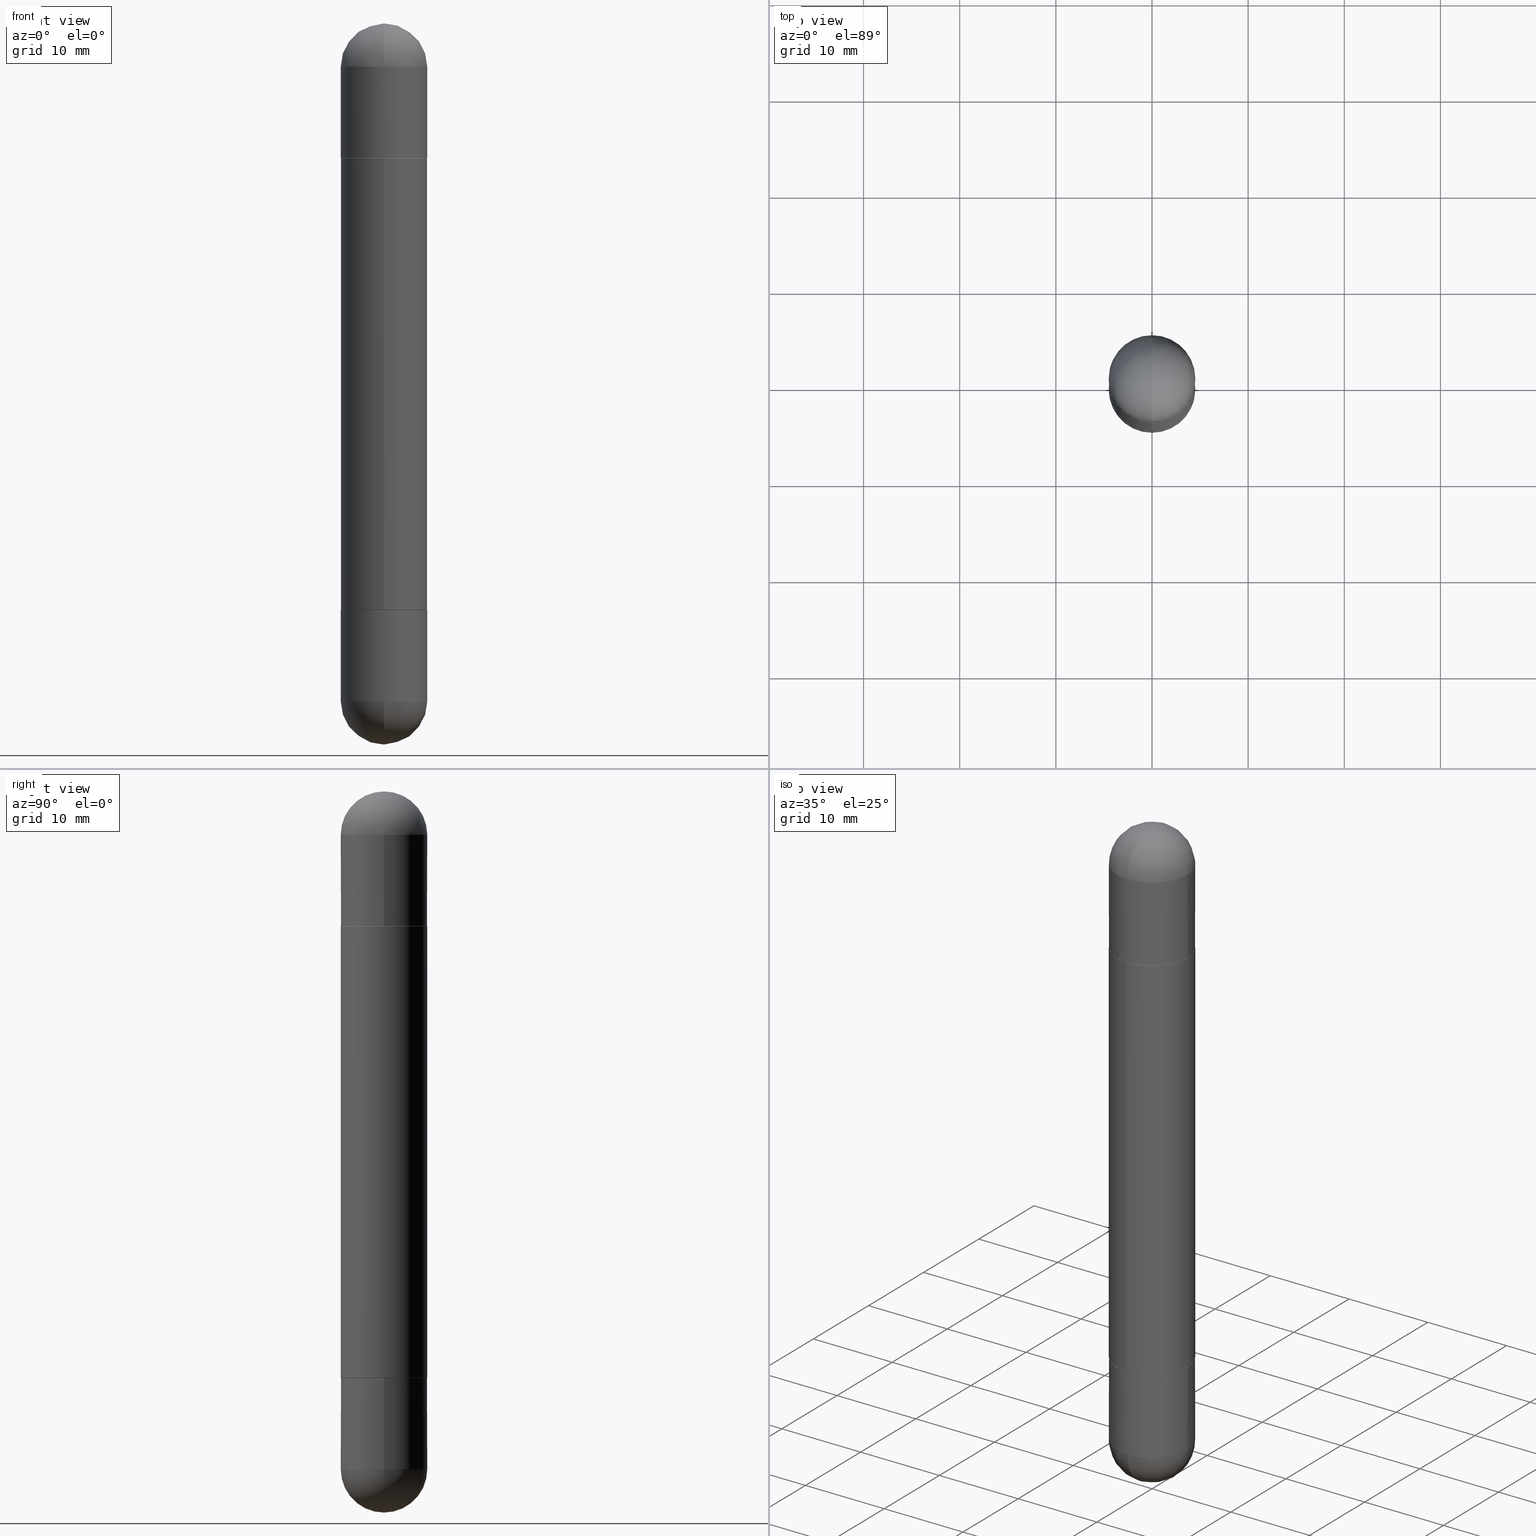
[diagram: canonical four-view strip — front | top / right | iso, engineering-drawing reading convention]
A machine part, canonical four-view strip (front | top / right | iso — engineering-drawing reading convention). The complete STEP part file that produces these views, byte-faithful:
ISO-10303-21;
HEADER;
FILE_DESCRIPTION (( 'STEP AP203' ),
    '1' );
FILE_NAME ('41454.STEP',
    '2024-03-01T12:45:10',
    ( '' ),
    ( '' ),
    'SwSTEP 2.0',
    'SolidWorks 2023',
    '' );
FILE_SCHEMA (( 'CONFIG_CONTROL_DESIGN' ));
ENDSEC;

DATA;
#1 = EDGE_CURVE ( 'NONE', #235, #277, #738, .T. ) ;
#2 = ORIENTED_EDGE ( 'NONE', *, *, #306, .T. ) ;
#3 = APPROVAL_ROLE ( '' ) ;
#4 = CARTESIAN_POINT ( 'NONE',  ( 1.251621029041475058E-15, 0.1761499999999916188, -2.401600000000000623 ) ) ;
#5 = CARTESIAN_POINT ( 'NONE',  ( 1.208476722307514059E-15, 0.1761499999999916188, -0.5511999999999992461 ) ) ;
#6 = VERTEX_POINT ( 'NONE', #110 ) ;
#7 = CARTESIAN_POINT ( 'NONE',  ( 1.211906971306400752E-15, 0.1761499999999916188, -0.5511999999999992461 ) ) ;
#8 = AXIS2_PLACEMENT_3D ( 'NONE', #677, #547, #250 ) ;
#9 = DIRECTION ( 'NONE',  ( 1.000000000000000000, -6.982962677686266711E-15, 0.000000000000000000 ) ) ;
#10 = EDGE_CURVE ( 'NONE', #24, #715, #681, .T. ) ;
#11 = AXIS2_PLACEMENT_3D ( 'NONE', #541, #228, #662 ) ;
#12 = AXIS2_PLACEMENT_3D ( 'NONE', #132, #624, #635 ) ;
#13 = ORIENTED_EDGE ( 'NONE', *, *, #495, .T. ) ;
#14 = DIRECTION ( 'NONE',  ( 1.000000000000000000, -6.982962677686272233E-15, 0.000000000000000000 ) ) ;
#15 = DIRECTION ( 'NONE',  ( -6.982962677686265133E-15, -1.000000000000000000, -3.084220145260243069E-15 ) ) ;
#16 = ORIENTED_EDGE ( 'NONE', *, *, #633, .T. ) ;
#17 = DIRECTION ( 'NONE',  ( -2.445468806185136597E-29, 3.491481338843145583E-15, 1.000000000000000000 ) ) ;
#18 = CARTESIAN_POINT ( 'NONE',  ( 1.237031838352180770E-15, 0.1771499999999916197, -0.5511999999999995792 ) ) ;
#19 = ORIENTED_EDGE ( 'NONE', *, *, #537, .F. ) ;
#20 = DIRECTION ( 'NONE',  ( -6.982962677686265133E-15, -1.000000000000000000, -3.469747663417770691E-15 ) ) ;
#21 = DIRECTION ( 'NONE',  ( -2.444945301580279245E-29, 3.492231027233333225E-15, -1.000000000000000000 ) ) ;
#22 = CONICAL_SURFACE ( 'NONE', #589, 0.1761500000000000010, 0.7853981633974311816 ) ;
#23 = AXIS2_PLACEMENT_3D ( 'NONE', #534, #147, #593 ) ;
#24 = VERTEX_POINT ( 'NONE', #58 ) ;
#25 = AXIS2_PLACEMENT_3D ( 'NONE', #319, #83, #14 ) ;
#26 = CARTESIAN_POINT ( 'NONE',  ( -0.1771500000000000019, 1.258726456399017493E-15, -8.713893512386565325E-30 ) ) ;
#27 = ADVANCED_FACE ( 'NONE', ( #747 ), #22, .T. ) ;
#28 = CARTESIAN_POINT ( 'NONE',  ( 6.787765491887772680E-29, -9.691130178159974964E-15, -0.1771500000000000574 ) ) ;
#29 = APPROVAL_PERSON_ORGANIZATION ( #236, #707, #440 ) ;
#30 = EDGE_CURVE ( 'NONE', #384, #636, #299, .T. ) ;
#31 = EDGE_LOOP ( 'NONE', ( #261, #770 ) ) ;
#32 = CARTESIAN_POINT ( 'NONE',  ( 1.237031838352189250E-15, 0.1771499999999902042, -0.1771499999999994468 ) ) ;
#33 = ADVANCED_FACE ( 'NONE', ( #355 ), #175, .T. ) ;
#34 = CARTESIAN_POINT ( 'NONE',  ( 0.000000000000000000, 0.000000000000000000, -2.952799999999999869 ) ) ;
#35 = ORIENTED_EDGE ( 'NONE', *, *, #439, .T. ) ;
#36 =( LENGTH_UNIT ( ) NAMED_UNIT ( * ) SI_UNIT ( $, .METRE. ) );
#37 = CARTESIAN_POINT ( 'NONE',  ( -0.1771500000000000019, 1.215337220305226901E-15, -2.952799999999999869 ) ) ;
#38 = CC_DESIGN_DATE_AND_TIME_ASSIGNMENT ( #245, #442, ( #222 ) ) ;
#39 = ORIENTED_EDGE ( 'NONE', *, *, #284, .T. ) ;
#40 = AXIS2_PLACEMENT_3D ( 'NONE', #386, #138, #638 ) ;
#41 = CIRCLE ( 'NONE', #794, 0.1771500000000000019 ) ;
#42 = CARTESIAN_POINT ( 'NONE',  ( 5.873037884934223228E-29, -8.385141583365697263E-15, -0.5512000000000001343 ) ) ;
#43 = LOCAL_TIME ( 7, 45, 10.00000000000000000, #683 ) ;
#44 = ORIENTED_EDGE ( 'NONE', *, *, #363, .T. ) ;
#45 = DIRECTION ( 'NONE',  ( 2.444945301580279245E-29, -3.492231027233333225E-15, 1.000000000000000000 ) ) ;
#46 = CARTESIAN_POINT ( 'NONE',  ( 0.1771500000000000019, -1.237031838352122197E-15, -2.952799999999999869 ) ) ;
#47 = DIRECTION ( 'NONE',  ( -2.445468806185136597E-29, 3.491481338843145583E-15, -1.000000000000000000 ) ) ;
#48 =( CONVERSION_BASED_UNIT ( 'INCH', #484 ) LENGTH_UNIT ( ) NAMED_UNIT ( #546 ) );
#49 = DIRECTION ( 'NONE',  ( 1.000000000000000000, -6.982962677686272233E-15, 0.000000000000000000 ) ) ;
#50 = EDGE_CURVE ( 'NONE', #610, #723, #512, .T. ) ;
#51 = CARTESIAN_POINT ( 'NONE',  ( -1.215337220305161228E-15, -0.1771500000000100772, -0.1771500000000006680 ) ) ;
#52 = VECTOR ( 'NONE', #620, 39.37007874015748854 ) ;
#53 = APPLICATION_PROTOCOL_DEFINITION ( 'international standard', 'config_control_design', 1994, #777 ) ;
#54 = ADVANCED_FACE ( 'NONE', ( #499 ), #289, .T. ) ;
#55 = AXIS2_PLACEMENT_3D ( 'NONE', #18, #276, #321 ) ;
#56 = AXIS2_PLACEMENT_3D ( 'NONE', #699, #63, #441 ) ;
#57 = DIRECTION ( 'NONE',  ( -2.445468806185136877E-29, 3.491481338843145188E-15, -1.000000000000000000 ) ) ;
#58 = CARTESIAN_POINT ( 'NONE',  ( 1.211906971306400752E-15, 0.1761499999999916188, -0.5511999999999992461 ) ) ;
#59 = CALENDAR_DATE ( 2024, 1, 3 ) ;
#60 = CARTESIAN_POINT ( 'NONE',  ( 0.000000000000000000, 0.000000000000000000, -2.952799999999999869 ) ) ;
#61 = PERSON_AND_ORGANIZATION_ROLE ( 'creator' ) ;
#62 = ADVANCED_FACE ( 'NONE', ( #181 ), #511, .T. ) ;
#63 = DIRECTION ( 'NONE',  ( 2.444945301580279245E-29, -3.492231027233333225E-15, 1.000000000000000000 ) ) ;
#64 = ADVANCED_FACE ( 'NONE', ( #450 ), #701, .F. ) ;
#65 = PERSON_AND_ORGANIZATION ( #348, #644 ) ;
#66 = FACE_OUTER_BOUND ( 'NONE', #229, .T. ) ;
#67 = CIRCLE ( 'NONE', #11, 0.1761500000000000010 ) ;
#68 = CIRCLE ( 'NONE', #172, 0.1771500000000003350 ) ;
#69 = PERSON_AND_ORGANIZATION_ROLE ( 'creator' ) ;
#70 = DIRECTION ( 'NONE',  ( -1.000000000000000000, 6.982962677686265922E-15, -4.883557194083112340E-29 ) ) ;
#71 = ORIENTED_EDGE ( 'NONE', *, *, #1, .T. ) ;
#72 = ORIENTED_EDGE ( 'NONE', *, *, #76, .F. ) ;
#73 = CYLINDRICAL_SURFACE ( 'NONE', #191, 0.1771500000000001962 ) ;
#74 = ORIENTED_EDGE ( 'NONE', *, *, #336, .T. ) ;
#75 = EDGE_LOOP ( 'NONE', ( #808, #785, #759, #776 ) ) ;
#76 = EDGE_CURVE ( 'NONE', #524, #91, #256, .T. ) ;
#77 = DIRECTION ( 'NONE',  ( -2.445468806185136877E-29, 3.491481338843145188E-15, 1.000000000000000000 ) ) ;
#78 = DIRECTION ( 'NONE',  ( 1.000000000000000000, -6.982962677686266711E-15, 0.000000000000000000 ) ) ;
#79 = AXIS2_PLACEMENT_3D ( 'NONE', #177, #415, #732 ) ;
#80 = AXIS2_PLACEMENT_3D ( 'NONE', #187, #444, #630 ) ;
#81 = PRODUCT_DEFINITION_SHAPE ( 'NONE', 'NONE',  #182 ) ;
#82 = ORIENTED_EDGE ( 'NONE', *, *, #588, .F. ) ;
#83 = DIRECTION ( 'NONE',  ( 2.445468806185136597E-29, -3.491481338843145583E-15, 1.000000000000000000 ) ) ;
#84 = CARTESIAN_POINT ( 'NONE',  ( 6.787765491887772680E-29, -9.691130178159974964E-15, -0.1771500000000000574 ) ) ;
#85 = ORIENTED_EDGE ( 'NONE', *, *, #439, .F. ) ;
#86 = CARTESIAN_POINT ( 'NONE',  ( 6.787765491887772680E-29, -9.691130178159974964E-15, -0.1771500000000000574 ) ) ;
#87 = DIRECTION ( 'NONE',  ( -0.000000000000000000, -0.000000000000000000, -1.000000000000000000 ) ) ;
#88 = ORIENTED_EDGE ( 'NONE', *, *, #746, .T. ) ;
#89 = CARTESIAN_POINT ( 'NONE',  ( 6.456645713973887554E-29, -1.016531254630002526E-14, -0.1771500000000000574 ) ) ;
#90 = DIRECTION ( 'NONE',  ( -2.444945301580279245E-29, 3.492231027233333225E-15, 1.000000000000000000 ) ) ;
#91 = VERTEX_POINT ( 'NONE', #114 ) ;
#92 = VECTOR ( 'NONE', #178, 39.37007874015748143 ) ;
#93 = CIRCLE ( 'NONE', #192, 0.1771500000000000019 ) ;
#94 = AXIS2_PLACEMENT_3D ( 'NONE', #86, #96, #457 ) ;
#95 = ORIENTED_EDGE ( 'NONE', *, *, #50, .T. ) ;
#96 = DIRECTION ( 'NONE',  ( 2.445468806185136597E-29, -3.491481338843145583E-15, 1.000000000000000000 ) ) ;
#97 = DIRECTION ( 'NONE',  ( -6.982962677686265922E-15, -1.000000000000000000, -3.492231027233333620E-15 ) ) ;
#98 = VERTEX_POINT ( 'NONE', #51 ) ;
#99 = CARTESIAN_POINT ( 'NONE',  ( 6.787765491887772680E-29, -9.691130178159974964E-15, -2.775649999999999729 ) ) ;
#100 = CYLINDRICAL_SURFACE ( 'NONE', #618, 0.1771500000000000019 ) ;
#101 = ORIENTED_EDGE ( 'NONE', *, *, #119, .T. ) ;
#102 = ADVANCED_FACE ( 'NONE', ( #614 ), #628, .T. ) ;
#103 = DIRECTION ( 'NONE',  ( 1.000000000000000000, -6.982962677686266711E-15, 0.000000000000000000 ) ) ;
#104 = ORIENTED_EDGE ( 'NONE', *, *, #807, .F. ) ;
#105 = AXIS2_PLACEMENT_3D ( 'NONE', #283, #609, #617 ) ;
#106 = DIRECTION ( 'NONE',  ( 0.000000000000000000, 0.000000000000000000, 1.000000000000000000 ) ) ;
#107 = AXIS2_PLACEMENT_3D ( 'NONE', #115, #661, #216 ) ;
#108 = DIRECTION ( 'NONE',  ( 1.000000000000000000, -6.982962677686266711E-15, 0.000000000000000000 ) ) ;
#109 = EDGE_CURVE ( 'NONE', #521, #24, #655, .T. ) ;
#110 = CARTESIAN_POINT ( 'NONE',  ( 6.897435148395990892E-29, -1.077298115645264157E-14, 2.048885995248197414E-16 ) ) ;
#111 = DIRECTION ( 'NONE',  ( -2.444945301580279245E-29, 3.492231027233333225E-15, 1.000000000000000000 ) ) ;
#112 = FACE_OUTER_BOUND ( 'NONE', #257, .T. ) ;
#113 = ADVANCED_FACE ( 'NONE', ( #651 ), #468, .F. ) ;
#114 = CARTESIAN_POINT ( 'NONE',  ( 0.1771500000000000019, -9.622173421717819657E-15, -2.401599999999999735 ) ) ;
#115 = CARTESIAN_POINT ( 'NONE',  ( 6.787765491887772680E-29, -9.691130178159974964E-15, -0.1771500000000000574 ) ) ;
#116 = LINE ( 'NONE', #46, #538 ) ;
#117 = VERTEX_POINT ( 'NONE', #339 ) ;
#118 = EDGE_CURVE ( 'NONE', #315, #285, #780, .T. ) ;
#119 = EDGE_CURVE ( 'NONE', #532, #636, #350, .T. ) ;
#120 = AXIS2_PLACEMENT_3D ( 'NONE', #647, #21, #15 ) ;
#121 = AXIS2_PLACEMENT_3D ( 'NONE', #737, #734, #164 ) ;
#122 = DIRECTION ( 'NONE',  ( -6.982962677686267499E-15, -1.000000000000000000, 3.101729200867741238E-15 ) ) ;
#123 = CARTESIAN_POINT ( 'NONE',  ( 0.000000000000000000, 0.000000000000000000, -2.952799999999999869 ) ) ;
#124 = AXIS2_PLACEMENT_3D ( 'NONE', #99, #544, #353 ) ;
#125 = PERSON_AND_ORGANIZATION ( #348, #644 ) ;
#126 = DIRECTION ( 'NONE',  ( 1.000000000000000000, -6.982962677686272233E-15, 0.000000000000000000 ) ) ;
#127 = DIRECTION ( 'NONE',  ( -6.982962677686267499E-15, -1.000000000000000000, 3.101729200867741238E-15 ) ) ;
#128 = DIRECTION ( 'NONE',  ( 2.445468806185136597E-29, -3.491481338843145583E-15, 1.000000000000000000 ) ) ;
#129 = CIRCLE ( 'NONE', #217, 0.1771500000000000019 ) ;
#130 = CONICAL_SURFACE ( 'NONE', #695, 0.1761500000000000010, 0.7853981633974311816 ) ;
#131 = EDGE_LOOP ( 'NONE', ( #456, #74, #39, #424, #389 ) ) ;
#132 = CARTESIAN_POINT ( 'NONE',  ( 0.000000000000000000, 0.000000000000000000, -2.952799999999999869 ) ) ;
#133 = DIRECTION ( 'NONE',  ( 0.000000000000000000, 0.000000000000000000, 1.000000000000000000 ) ) ;
#134 = ORIENTED_EDGE ( 'NONE', *, *, #419, .T. ) ;
#135 = VERTEX_POINT ( 'NONE', #400 ) ;
#136 = PRODUCT ( '41454', '41454', '', ( #748 ) ) ;
#137 = CARTESIAN_POINT ( 'NONE',  ( -1.230048875674377215E-15, -0.1761500000000084110, -0.5512000000000004674 ) ) ;
#138 = DIRECTION ( 'NONE',  ( 1.000000000000000000, -6.982962677686265922E-15, -4.883557194083112340E-29 ) ) ;
#139 = ORIENTED_EDGE ( 'NONE', *, *, #148, .T. ) ;
#140 = DIRECTION ( 'NONE',  ( 2.445468806185136597E-29, -3.491481338843145583E-15, 1.000000000000000000 ) ) ;
#141 = CONICAL_SURFACE ( 'NONE', #551, 0.1761500000000000010, 0.7853981633974311816 ) ;
#142 = CIRCLE ( 'NONE', #526, 0.1771500000000003350 ) ;
#143 = VERTEX_POINT ( 'NONE', #774 ) ;
#144 = DIRECTION ( 'NONE',  ( -2.444945301580279245E-29, 3.492231027233333225E-15, 1.000000000000000000 ) ) ;
#145 = CC_DESIGN_APPROVAL ( #707, ( #222 ) ) ;
#146 = EDGE_CURVE ( 'NONE', #384, #702, #739, .T. ) ;
#147 = DIRECTION ( 'NONE',  ( -2.445468806185136597E-29, 3.491481338843145583E-15, 1.000000000000000000 ) ) ;
#148 = EDGE_CURVE ( 'NONE', #277, #235, #279, .T. ) ;
#149 = VERTEX_POINT ( 'NONE', #658 ) ;
#150 = ADVANCED_FACE ( 'NONE', ( #260 ), #392, .T. ) ;
#151 = CARTESIAN_POINT ( 'NONE',  ( 6.456645713973887554E-29, -1.016531254630002526E-14, -2.775649999999999729 ) ) ;
#152 = CARTESIAN_POINT ( 'NONE',  ( -1.230048875674377215E-15, -0.1761500000000084110, -2.401599999999999291 ) ) ;
#153 = ORIENTED_EDGE ( 'NONE', *, *, #682, .F. ) ;
#154 = PLANE ( 'NONE',  #351 ) ;
#155 = CARTESIAN_POINT ( 'NONE',  ( 5.873037884934223228E-29, -8.385141583365697263E-15, -0.5512000000000001343 ) ) ;
#156 = AXIS2_PLACEMENT_3D ( 'NONE', #123, #47, #9 ) ;
#157 = CIRCLE ( 'NONE', #253, 0.1771500000000002517 ) ;
#158 = AXIS2_PLACEMENT_3D ( 'NONE', #498, #249, #564 ) ;
#159 = EDGE_LOOP ( 'NONE', ( #153, #82, #402, #762, #2 ) ) ;
#160 = CC_DESIGN_DATE_AND_TIME_ASSIGNMENT ( #500, #183, ( #182 ) ) ;
#161 = DIRECTION ( 'NONE',  ( -2.445468806185136877E-29, 3.491481338843145188E-15, -1.000000000000000000 ) ) ;
#162 = DIRECTION ( 'NONE',  ( -2.444945301580278405E-29, 3.492231027233333620E-15, -1.000000000000000000 ) ) ;
#163 = ORIENTED_EDGE ( 'NONE', *, *, #346, .F. ) ;
#164 = DIRECTION ( 'NONE',  ( -1.000000000000000000, 6.982962677686265922E-15, -4.876176775795935793E-29 ) ) ;
#165 = DIRECTION ( 'NONE',  ( -6.982962677686265922E-15, -1.000000000000000000, -3.492231027233333620E-15 ) ) ;
#166 = EDGE_LOOP ( 'NONE', ( #379, #247, #772, #611 ) ) ;
#167 = DIRECTION ( 'NONE',  ( -6.982962677686267499E-15, -1.000000000000000000, 3.101729200867741238E-15 ) ) ;
#168 = DIRECTION ( 'NONE',  ( -2.445468806185136597E-29, 3.491481338843145583E-15, -1.000000000000000000 ) ) ;
#169 = EDGE_LOOP ( 'NONE', ( #607, #558 ) ) ;
#170 = AXIS2_PLACEMENT_3D ( 'NONE', #434, #193, #428 ) ;
#171 = DIRECTION ( 'NONE',  ( -2.444945301580279245E-29, 3.492231027233333620E-15, -1.000000000000000000 ) ) ;
#172 = AXIS2_PLACEMENT_3D ( 'NONE', #627, #568, #316 ) ;
#173 = ADVANCED_FACE ( 'NONE', ( #458 ), #717, .F. ) ;
#174 = DIRECTION ( 'NONE',  ( 1.000000000000000000, -6.982962677686266711E-15, 0.000000000000000000 ) ) ;
#175 = CYLINDRICAL_SURFACE ( 'NONE', #156, 0.1771500000000000019 ) ;
#176 = CARTESIAN_POINT ( 'NONE',  ( 0.000000000000000000, 0.000000000000000000, 0.000000000000000000 ) ) ;
#177 = CARTESIAN_POINT ( 'NONE',  ( 6.787765491887772680E-29, -9.691130178159974964E-15, -0.1771500000000000574 ) ) ;
#178 = DIRECTION ( 'NONE',  ( -2.445468806185136877E-29, 3.491481338843145188E-15, -1.000000000000000000 ) ) ;
#179 = PERSON_AND_ORGANIZATION ( #348, #644 ) ;
#180 = CARTESIAN_POINT ( 'NONE',  ( 5.871780636275197592E-29, -8.386942035003572151E-15, -2.401599999999999735 ) ) ;
#181 = FACE_OUTER_BOUND ( 'NONE', #159, .T. ) ;
#182 = PRODUCT_DEFINITION ( 'UNKNOWN', '', #565, #408 ) ;
#183 = DATE_TIME_ROLE ( 'creation_date' ) ;
#184 = CIRCLE ( 'NONE', #727, 0.1761500000000000010 ) ;
#185 = DIRECTION ( 'NONE',  ( -2.444945301580279245E-29, 3.492231027233333620E-15, -1.000000000000000000 ) ) ;
#186 = CARTESIAN_POINT ( 'NONE',  ( 1.215337220305287643E-15, 0.1771499999999919250, -0.5521999999999995801 ) ) ;
#187 = CARTESIAN_POINT ( 'NONE',  ( 6.456645713973887554E-29, -1.016531254630002526E-14, -0.1771500000000000574 ) ) ;
#188 = EDGE_LOOP ( 'NONE', ( #431, #258, #465, #529 ) ) ;
#189 = CLOSED_SHELL ( 'NONE', ( #409, #548, #467, #455, #62 ) ) ;
#190 = DIRECTION ( 'NONE',  ( 2.444945301580279245E-29, -3.492231027233333225E-15, 1.000000000000000000 ) ) ;
#191 = AXIS2_PLACEMENT_3D ( 'NONE', #60, #237, #432 ) ;
#192 = AXIS2_PLACEMENT_3D ( 'NONE', #382, #128, #814 ) ;
#193 = DIRECTION ( 'NONE',  ( -2.445468806185136597E-29, 3.491481338843145583E-15, -1.000000000000000000 ) ) ;
#194 = VERTEX_POINT ( 'NONE', #152 ) ;
#195 = DIRECTION ( 'NONE',  ( -2.444945301580279245E-29, 3.492231027233333225E-15, -1.000000000000000000 ) ) ;
#196 = CARTESIAN_POINT ( 'NONE',  ( 0.1771500000000000019, -1.237031838352122197E-15, -2.952799999999999869 ) ) ;
#197 = ORIENTED_EDGE ( 'NONE', *, *, #495, .F. ) ;
#198 = DIRECTION ( 'NONE',  ( -6.982962677686267499E-15, -1.000000000000000000, -3.489445350976209435E-15 ) ) ;
#199 = CARTESIAN_POINT ( 'NONE',  ( 5.871780636275197592E-29, -8.386942035003572151E-15, -0.5511999999999998012 ) ) ;
#200 = VERTEX_POINT ( 'NONE', #204 ) ;
#201 = ADVANCED_FACE ( 'NONE', ( #523 ), #784, .T. ) ;
#202 = CARTESIAN_POINT ( 'NONE',  ( -0.1771500000000000019, -7.822798660457608227E-15, -0.5512000000000001343 ) ) ;
#203 = CLOSED_SHELL ( 'NONE', ( #230, #331, #64, #113, #586, #273 ) ) ;
#204 = CARTESIAN_POINT ( 'NONE',  ( -1.237031838352065793E-15, -0.1771500000000087172, -0.5522000000000008013 ) ) ;
#205 = AXIS2_PLACEMENT_3D ( 'NONE', #520, #584, #78 ) ;
#206 = CIRCLE ( 'NONE', #407, 0.1761500000000000010 ) ;
#207 = ADVANCED_FACE ( 'NONE', ( #791 ), #704, .T. ) ;
#208 = EDGE_LOOP ( 'NONE', ( #487, #781 ) ) ;
#209 = DIRECTION ( 'NONE',  ( -2.444945301580279245E-29, 3.492231027233333225E-15, -1.000000000000000000 ) ) ;
#210 = DIRECTION ( 'NONE',  ( 1.000000000000000000, -6.982962677686272233E-15, 0.000000000000000000 ) ) ;
#211 = VERTEX_POINT ( 'NONE', #464 ) ;
#212 = DIRECTION ( 'NONE',  ( 6.982962677686265922E-15, 1.000000000000000000, -3.084220145260241885E-15 ) ) ;
#213 = CARTESIAN_POINT ( 'NONE',  ( 6.456645713973887554E-29, -1.016531254630002526E-14, -0.1771500000000000574 ) ) ;
#214 = CC_DESIGN_PERSON_AND_ORGANIZATION_ASSIGNMENT ( #125, #248, ( #565 ) ) ;
#215 = VERTEX_POINT ( 'NONE', #577 ) ;
#216 = DIRECTION ( 'NONE',  ( 1.000000000000000000, -6.982962677686272233E-15, 0.000000000000000000 ) ) ;
#217 = AXIS2_PLACEMENT_3D ( 'NONE', #601, #539, #49 ) ;
#218 = AXIS2_PLACEMENT_3D ( 'NONE', #373, #246, #757 ) ;
#219 = ORIENTED_EDGE ( 'NONE', *, *, #388, .T. ) ;
#220 = LOCAL_TIME ( 7, 45, 10.00000000000000000, #370 ) ;
#221 = DIRECTION ( 'NONE',  ( -6.982962677686267499E-15, -1.000000000000000000, -3.489445350976209435E-15 ) ) ;
#222 = SECURITY_CLASSIFICATION ( '', '', #760 ) ;
#223 = ORIENTED_EDGE ( 'NONE', *, *, #506, .T. ) ;
#224 = CARTESIAN_POINT ( 'NONE',  ( 5.871780636275197592E-29, -8.386942035003572151E-15, -0.5511999999999998012 ) ) ;
#225 = EDGE_CURVE ( 'NONE', #514, #723, #639, .T. ) ;
#226 = ORIENTED_EDGE ( 'NONE', *, *, #363, .F. ) ;
#227 = PLANE ( 'NONE',  #121 ) ;
#228 = DIRECTION ( 'NONE',  ( 2.444945301580279245E-29, -3.492231027233333225E-15, 1.000000000000000000 ) ) ;
#229 = EDGE_LOOP ( 'NONE', ( #417, #486 ) ) ;
#230 = ADVANCED_FACE ( 'NONE', ( #788 ), #714, .T. ) ;
#231 = CIRCLE ( 'NONE', #694, 0.1771500000000002517 ) ;
#232 = AXIS2_PLACEMENT_3D ( 'NONE', #367, #621, #20 ) ;
#233 = LINE ( 'NONE', #37, #242 ) ;
#234 = CC_DESIGN_APPROVAL ( #396, ( #182 ) ) ;
#235 = VERTEX_POINT ( 'NONE', #266 ) ;
#236 = PERSON_AND_ORGANIZATION ( #348, #644 ) ;
#237 = DIRECTION ( 'NONE',  ( -2.444945301580279245E-29, 3.492231027233333225E-15, -1.000000000000000000 ) ) ;
#238 = DIRECTION ( 'NONE',  ( 1.000000000000000000, -6.860497997771530774E-15, -4.840798879624142912E-29 ) ) ;
#239 = CARTESIAN_POINT ( 'NONE',  ( 5.871780636275197592E-29, -8.386942035003572151E-15, -0.5511999999999998012 ) ) ;
#240 = EDGE_CURVE ( 'NONE', #6, #702, #157, .T. ) ;
#241 = PERSON_AND_ORGANIZATION ( #348, #644 ) ;
#242 = VECTOR ( 'NONE', #613, 39.37007874015748143 ) ;
#243 = AXIS2_PLACEMENT_3D ( 'NONE', #151, #265, #783 ) ;
#244 = DIRECTION ( 'NONE',  ( 6.982962677686265922E-15, 1.000000000000000000, -3.084220145260241885E-15 ) ) ;
#245 = DATE_AND_TIME ( #616, #220 ) ;
#246 = DIRECTION ( 'NONE',  ( -2.445468806185136597E-29, 3.491481338843145583E-15, 1.000000000000000000 ) ) ;
#247 = ORIENTED_EDGE ( 'NONE', *, *, #696, .T. ) ;
#248 = PERSON_AND_ORGANIZATION_ROLE ( 'design_supplier' ) ;
#249 = DIRECTION ( 'NONE',  ( 2.438088387897960049E-29, -3.491481338843145188E-15, 1.000000000000000000 ) ) ;
#250 = DIRECTION ( 'NONE',  ( 6.982962677686265922E-15, 1.000000000000000000, 3.469747663417772269E-15 ) ) ;
#251 = ORIENTED_EDGE ( 'NONE', *, *, #682, .T. ) ;
#252 = CARTESIAN_POINT ( 'NONE',  ( 6.456645713973887554E-29, -1.016531254630002526E-14, -2.775649999999999729 ) ) ;
#253 = AXIS2_PLACEMENT_3D ( 'NONE', #213, #471, #722 ) ;
#254 = EDGE_CURVE ( 'NONE', #149, #632, #474, .T. ) ;
#255 = AXIS2_PLACEMENT_3D ( 'NONE', #642, #209, #198 ) ;
#256 = LINE ( 'NONE', #358, #267 ) ;
#257 = EDGE_LOOP ( 'NONE', ( #469, #517, #330, #272 ) ) ;
#258 = ORIENTED_EDGE ( 'NONE', *, *, #482, .T. ) ;
#259 = DIRECTION ( 'NONE',  ( -2.444945301580278405E-29, 3.492231027233333620E-15, 1.000000000000000000 ) ) ;
#260 = FACE_OUTER_BOUND ( 'NONE', #594, .T. ) ;
#261 = ORIENTED_EDGE ( 'NONE', *, *, #254, .F. ) ;
#262 = DIRECTION ( 'NONE',  ( 1.000000000000000000, -6.982962677686266711E-15, 0.000000000000000000 ) ) ;
#263 = CARTESIAN_POINT ( 'NONE',  ( 5.869335690973616704E-29, -8.383449803976338802E-15, -2.400599999999999401 ) ) ;
#264 = ORIENTED_EDGE ( 'NONE', *, *, #349, .F. ) ;
#265 = DIRECTION ( 'NONE',  ( 1.000000000000000000, -6.982962677686265922E-15, 4.883557194083112340E-29 ) ) ;
#266 = CARTESIAN_POINT ( 'NONE',  ( -1.237031838352075654E-15, -0.1771500000000053310, -1.476399999999999935 ) ) ;
#267 = VECTOR ( 'NONE', #492, 39.37007874015748143 ) ;
#268 = CIRCLE ( 'NONE', #94, 0.1771500000000000019 ) ;
#269 = ORIENTED_EDGE ( 'NONE', *, *, #336, .F. ) ;
#270 = DIRECTION ( 'NONE',  ( 2.444945301580279245E-29, -3.492231027233333225E-15, 1.000000000000000000 ) ) ;
#271 = DIRECTION ( 'NONE',  ( 2.445468806185136597E-29, -3.491481338843145583E-15, 1.000000000000000000 ) ) ;
#272 = ORIENTED_EDGE ( 'NONE', *, *, #758, .F. ) ;
#273 = ADVANCED_FACE ( 'NONE', ( #360 ), #665, .T. ) ;
#274 = CARTESIAN_POINT ( 'NONE',  ( 1.208476722307514059E-15, 0.1761499999999916188, -0.5511999999999992461 ) ) ;
#275 = EDGE_CURVE ( 'NONE', #98, #384, #750, .T. ) ;
#276 = DIRECTION ( 'NONE',  ( 2.438088387897960049E-29, -3.491481338843145188E-15, 1.000000000000000000 ) ) ;
#277 = VERTEX_POINT ( 'NONE', #735 ) ;
#278 = DIRECTION ( 'NONE',  ( 1.000000000000000000, -6.982962677686272233E-15, 0.000000000000000000 ) ) ;
#279 = CIRCLE ( 'NONE', #793, 0.1771500000000001962 ) ;
#280 = AXIS2_PLACEMENT_3D ( 'NONE', #385, #590, #580 ) ;
#281 = EDGE_LOOP ( 'NONE', ( #645, #413, #423, #452 ) ) ;
#282 = CARTESIAN_POINT ( 'NONE',  ( 1.237031838352189250E-15, 0.1771499999999902042, -2.775650000000000173 ) ) ;
#283 = CARTESIAN_POINT ( 'NONE',  ( 0.000000000000000000, 0.000000000000000000, -2.952799999999999869 ) ) ;
#284 = EDGE_CURVE ( 'NONE', #632, #149, #764, .T. ) ;
#285 = VERTEX_POINT ( 'NONE', #679 ) ;
#286 = CC_DESIGN_PERSON_AND_ORGANIZATION_ASSIGNMENT ( #65, #61, ( #182 ) ) ;
#287 = CARTESIAN_POINT ( 'NONE',  ( -1.237031838352123183E-15, -0.1771500000000001962, -2.952800000000000313 ) ) ;
#288 = DIRECTION ( 'NONE',  ( -4.937700262164462845E-15, -0.7071067811865329178, 0.7071067811865620056 ) ) ;
#289 = SPHERICAL_SURFACE ( 'NONE', #8, 0.1771500000000002517 ) ;
#290 = EDGE_CURVE ( 'NONE', #524, #730, #445, .T. ) ;
#291 = DIRECTION ( 'NONE',  ( 2.445468806185136597E-29, -3.491481338843145583E-15, 1.000000000000000000 ) ) ;
#292 = CARTESIAN_POINT ( 'NONE',  ( 5.871780636275197592E-29, -8.386942035003572151E-15, -0.5511999999999998012 ) ) ;
#293 = AXIS2_PLACEMENT_3D ( 'NONE', #263, #90, #643 ) ;
#294 = CIRCLE ( 'NONE', #366, 0.1771500000000002517 ) ;
#295 = PERSON_AND_ORGANIZATION ( #348, #644 ) ;
#296 = EDGE_CURVE ( 'NONE', #215, #149, #116, .T. ) ;
#297 = DIRECTION ( 'NONE',  ( -2.445468806185136597E-29, 3.491481338843145583E-15, 1.000000000000000000 ) ) ;
#298 = CIRCLE ( 'NONE', #555, 0.1761500000000000010 ) ;
#299 = LINE ( 'NONE', #196, #92 ) ;
#300 = DATE_AND_TIME ( #59, #659 ) ;
#301 = EDGE_CURVE ( 'NONE', #194, #285, #556, .T. ) ;
#302 = DIRECTION ( 'NONE',  ( 2.445468806185136597E-29, -3.491481338843145583E-15, 1.000000000000000000 ) ) ;
#303 = ADVANCED_FACE ( 'NONE', ( #811 ), #426, .T. ) ;
#304 = PERSON_AND_ORGANIZATION ( #348, #644 ) ;
#305 = CARTESIAN_POINT ( 'NONE',  ( -1.237031838352123183E-15, -0.1771500000000001962, -2.952800000000000313 ) ) ;
#306 = EDGE_CURVE ( 'NONE', #636, #532, #421, .T. ) ;
#307 = COORDINATED_UNIVERSAL_TIME_OFFSET ( 5, 0, .BEHIND. ) ;
#308 = CONICAL_SURFACE ( 'NONE', #255, 0.1761500000000000010, 0.7853981633974311816 ) ;
#309 = PLANE ( 'NONE',  #158 ) ;
#310 = ADVANCED_FACE ( 'NONE', ( #412 ), #545, .F. ) ;
#311 = PERSON_AND_ORGANIZATION_ROLE ( 'classification_officer' ) ;
#312 = DIRECTION ( 'NONE',  ( -2.444945301580279245E-29, 3.492231027233333225E-15, 1.000000000000000000 ) ) ;
#313 = ORIENTED_EDGE ( 'NONE', *, *, #623, .T. ) ;
#314 = ORIENTED_EDGE ( 'NONE', *, *, #322, .F. ) ;
#315 = VERTEX_POINT ( 'NONE', #485 ) ;
#316 = DIRECTION ( 'NONE',  ( -6.982962677686265133E-15, -1.000000000000000000, -3.469747663417770691E-15 ) ) ;
#317 = DIRECTION ( 'NONE',  ( -0.000000000000000000, -0.000000000000000000, -1.000000000000000000 ) ) ;
#318 = ORIENTED_EDGE ( 'NONE', *, *, #625, .T. ) ;
#319 = CARTESIAN_POINT ( 'NONE',  ( 6.787765491887772680E-29, -9.691130178159974964E-15, -0.1771500000000000574 ) ) ;
#320 = AXIS2_PLACEMENT_3D ( 'NONE', #292, #527, #709 ) ;
#321 = DIRECTION ( 'NONE',  ( -1.000000000000000000, 6.982962677686265922E-15, 4.876176775795935793E-29 ) ) ;
#322 = EDGE_CURVE ( 'NONE', #211, #634, #67, .T. ) ;
#323 = ORIENTED_EDGE ( 'NONE', *, *, #109, .F. ) ;
#324 = ADVANCED_FACE ( 'NONE', ( #347 ), #100, .T. ) ;
#325 = CARTESIAN_POINT ( 'NONE',  ( -0.1771500000000000019, -7.822798660457608227E-15, -0.5512000000000001343 ) ) ;
#326 = DIRECTION ( 'NONE',  ( -6.982962677686267499E-15, -1.000000000000000000, -3.489445350976209435E-15 ) ) ;
#327 = ORIENTED_EDGE ( 'NONE', *, *, #807, .T. ) ;
#328 = DIRECTION ( 'NONE',  ( -4.937700262164462845E-15, -0.7071067811865329178, -0.7071067811865620056 ) ) ;
#329 = DIRECTION ( 'NONE',  ( -2.444945301580278405E-29, 3.492231027233333620E-15, -1.000000000000000000 ) ) ;
#330 = ORIENTED_EDGE ( 'NONE', *, *, #528, .T. ) ;
#331 = ADVANCED_FACE ( 'NONE', ( #112 ), #141, .T. ) ;
#332 = CARTESIAN_POINT ( 'NONE',  ( 5.869335690973616704E-29, -8.383449803976338802E-15, -0.5522000000000002462 ) ) ;
#333 = DIRECTION ( 'NONE',  ( -1.000000000000000000, 0.000000000000000000, 0.000000000000000000 ) ) ;
#334 = CIRCLE ( 'NONE', #573, 0.1771500000000000019 ) ;
#335 = EDGE_LOOP ( 'NONE', ( #381, #542, #223, #720 ) ) ;
#336 = EDGE_CURVE ( 'NONE', #514, #632, #233, .T. ) ;
#337 = CARTESIAN_POINT ( 'NONE',  ( 0.1771500000000000019, -9.622173421717819657E-15, -0.5512000000000001343 ) ) ;
#338 =( GEOMETRIC_REPRESENTATION_CONTEXT ( 3 ) GLOBAL_UNCERTAINTY_ASSIGNED_CONTEXT ( ( #680 ) ) GLOBAL_UNIT_ASSIGNED_CONTEXT ( ( #48, #799, #414 ) ) REPRESENTATION_CONTEXT ( 'NONE', 'WORKASPACE' ) );
#339 = CARTESIAN_POINT ( 'NONE',  ( -0.1771500000000000019, -7.822798660457609805E-15, -0.1771500000000000574 ) ) ;
#340 = ORIENTED_EDGE ( 'NONE', *, *, #346, .T. ) ;
#341 = CARTESIAN_POINT ( 'NONE',  ( -1.215337220305161228E-15, -0.1771500000000100772, -0.1771500000000006680 ) ) ;
#342 = CARTESIAN_POINT ( 'NONE',  ( 5.871780636275197592E-29, -8.386942035003572151E-15, -0.5511999999999998012 ) ) ;
#343 = APPLICATION_CONTEXT ( 'configuration controlled 3d designs of mechanical parts and assemblies' ) ;
#344 = EDGE_LOOP ( 'NONE', ( #653, #718, #397, #736 ) ) ;
#345 = CARTESIAN_POINT ( 'NONE',  ( -0.1771500000000000019, 1.215337220305226901E-15, -2.952799999999999869 ) ) ;
#346 = EDGE_CURVE ( 'NONE', #410, #524, #129, .T. ) ;
#347 = FACE_OUTER_BOUND ( 'NONE', #131, .T. ) ;
#348 = PERSON ( 'UNSPECIFIED', 'UNSPECIFIED', 'UNSPECIFIED', ('UNSPECIFIED'), ('UNSPECIFIED'), ('UNSPECIFIED') ) ;
#349 = EDGE_CURVE ( 'NONE', #143, #410, #231, .T. ) ;
#350 = CIRCLE ( 'NONE', #205, 0.1771500000000000019 ) ;
#351 = AXIS2_PLACEMENT_3D ( 'NONE', #716, #259, #404 ) ;
#352 = ORIENTED_EDGE ( 'NONE', *, *, #786, .F. ) ;
#353 = DIRECTION ( 'NONE',  ( 1.000000000000000000, -6.982962677686272233E-15, 0.000000000000000000 ) ) ;
#354 = ADVANCED_FACE ( 'NONE', ( #795 ), #481, .T. ) ;
#355 = FACE_OUTER_BOUND ( 'NONE', #706, .T. ) ;
#356 = DIRECTION ( 'NONE',  ( -6.982962677686265922E-15, -1.000000000000000000, 0.000000000000000000 ) ) ;
#357 = DIRECTION ( 'NONE',  ( -2.444945301580279245E-29, 3.492231027233333225E-15, -1.000000000000000000 ) ) ;
#358 = CARTESIAN_POINT ( 'NONE',  ( 0.1771500000000000019, -1.237031838352122197E-15, 8.638147158322499960E-30 ) ) ;
#359 = PERSON_AND_ORGANIZATION ( #348, #644 ) ;
#360 = FACE_OUTER_BOUND ( 'NONE', #75, .T. ) ;
#361 = ORIENTED_EDGE ( 'NONE', *, *, #443, .F. ) ;
#362 = AXIS2_PLACEMENT_3D ( 'NONE', #812, #238, #553 ) ;
#363 = EDGE_CURVE ( 'NONE', #135, #410, #334, .T. ) ;
#364 = ORIENTED_EDGE ( 'NONE', *, *, #118, .F. ) ;
#365 = AXIS2_PLACEMENT_3D ( 'NONE', #34, #395, #581 ) ;
#366 = AXIS2_PLACEMENT_3D ( 'NONE', #664, #612, #356 ) ;
#367 = CARTESIAN_POINT ( 'NONE',  ( 5.869335690973616704E-29, -8.383449803976338802E-15, -0.5522000000000002462 ) ) ;
#368 = CC_DESIGN_SECURITY_CLASSIFICATION ( #222, ( #565 ) ) ;
#369 = EDGE_LOOP ( 'NONE', ( #71, #139 ) ) ;
#370 = COORDINATED_UNIVERSAL_TIME_OFFSET ( 5, 0, .BEHIND. ) ;
#371 = DIRECTION ( 'NONE',  ( 1.000000000000000000, -6.982962677686272233E-15, 0.000000000000000000 ) ) ;
#372 = ADVANCED_FACE ( 'NONE', ( #754 ), #73, .T. ) ;
#373 = CARTESIAN_POINT ( 'NONE',  ( 5.873037884934223228E-29, -8.385141583365697263E-15, -2.401599999999999735 ) ) ;
#374 = APPROVAL_DATE_TIME ( #497, #707 ) ;
#375 = AXIS2_PLACEMENT_3D ( 'NONE', #28, #271, #779 ) ;
#376 = AXIS2_PLACEMENT_3D ( 'NONE', #89, #650, #773 ) ;
#377 = CARTESIAN_POINT ( 'NONE',  ( 6.787765491887772680E-29, -9.691130178159974964E-15, -0.1771500000000000574 ) ) ;
#378 = EDGE_CURVE ( 'NONE', #652, #514, #93, .T. ) ;
#379 = ORIENTED_EDGE ( 'NONE', *, *, #528, .F. ) ;
#380 = LOCAL_TIME ( 7, 45, 10.00000000000000000, #307 ) ;
#381 = ORIENTED_EDGE ( 'NONE', *, *, #399, .F. ) ;
#382 = CARTESIAN_POINT ( 'NONE',  ( 6.787765491887772680E-29, -9.691130178159974964E-15, -0.1771500000000000574 ) ) ;
#383 = ORIENTED_EDGE ( 'NONE', *, *, #482, .F. ) ;
#384 = VERTEX_POINT ( 'NONE', #690 ) ;
#385 = CARTESIAN_POINT ( 'NONE',  ( 6.456645713973887554E-29, -1.016531254630002526E-14, -0.1771500000000000574 ) ) ;
#386 = CARTESIAN_POINT ( 'NONE',  ( 6.456645713973887554E-29, -1.016531254630002526E-14, -0.1771500000000000574 ) ) ;
#387 = VERTEX_POINT ( 'NONE', #186 ) ;
#388 = EDGE_CURVE ( 'NONE', #723, #215, #41, .T. ) ;
#389 = ORIENTED_EDGE ( 'NONE', *, *, #388, .F. ) ;
#390 = LINE ( 'NONE', #26, #641 ) ;
#391 = AXIS2_PLACEMENT_3D ( 'NONE', #475, #728, #797 ) ;
#392 = CYLINDRICAL_SURFACE ( 'NONE', #365, 0.1771500000000001962 ) ;
#393 = ORIENTED_EDGE ( 'NONE', *, *, #10, .F. ) ;
#394 = SPHERICAL_SURFACE ( 'NONE', #751, 0.1771500000000002517 ) ;
#395 = DIRECTION ( 'NONE',  ( -2.444945301580279245E-29, 3.492231027233333225E-15, -1.000000000000000000 ) ) ;
#396 = APPROVAL ( #626, 'UNSPECIFIED' ) ;
#397 = ORIENTED_EDGE ( 'NONE', *, *, #378, .T. ) ;
#398 = FACE_OUTER_BOUND ( 'NONE', #335, .T. ) ;
#399 = EDGE_CURVE ( 'NONE', #634, #211, #686, .T. ) ;
#400 = CARTESIAN_POINT ( 'NONE',  ( -0.1771500000000000019, -7.779409424363817635E-15, -2.775649999999999729 ) ) ;
#401 = ADVANCED_FACE ( 'NONE', ( #691 ), #592, .T. ) ;
#402 = ORIENTED_EDGE ( 'NONE', *, *, #146, .F. ) ;
#403 = EDGE_CURVE ( 'NONE', #24, #521, #206, .T. ) ;
#404 = DIRECTION ( 'NONE',  ( -6.982962677686265922E-15, -1.000000000000000000, 3.492231027233333620E-15 ) ) ;
#405 = AXIS2_PLACEMENT_3D ( 'NONE', #42, #676, #103 ) ;
#406 = DIRECTION ( 'NONE',  ( 2.444945301580279245E-29, -3.492231027233333225E-15, 1.000000000000000000 ) ) ;
#407 = AXIS2_PLACEMENT_3D ( 'NONE', #239, #190, #449 ) ;
#408 = DESIGN_CONTEXT ( 'detailed design', #777, 'design' ) ;
#409 = ADVANCED_FACE ( 'NONE', ( #560 ), #501, .T. ) ;
#410 = VERTEX_POINT ( 'NONE', #693 ) ;
#411 = CARTESIAN_POINT ( 'NONE',  ( -1.230048875674377215E-15, -0.1761500000000084110, -0.5512000000000004674 ) ) ;
#412 = FACE_OUTER_BOUND ( 'NONE', #169, .T. ) ;
#413 = ORIENTED_EDGE ( 'NONE', *, *, #557, .T. ) ;
#414 =( NAMED_UNIT ( * ) SI_UNIT ( $, .STERADIAN. ) SOLID_ANGLE_UNIT ( ) );
#415 = DIRECTION ( 'NONE',  ( 2.445468806185136597E-29, -3.491481338843145583E-15, 1.000000000000000000 ) ) ;
#416 = MANIFOLD_SOLID_BREP ( 'Mirror4[4]', #189 ) ;
#417 = ORIENTED_EDGE ( 'NONE', *, *, #306, .F. ) ;
#418 = APPLICATION_PROTOCOL_DEFINITION ( 'international standard', 'config_control_design', 1994, #343 ) ;
#419 = EDGE_CURVE ( 'NONE', #91, #587, #515, .T. ) ;
#420 = DIRECTION ( 'NONE',  ( -7.105427357601001070E-15, -1.000000000000000000, 0.000000000000000000 ) ) ;
#421 = CIRCLE ( 'NONE', #405, 0.1771500000000000019 ) ;
#422 = CIRCLE ( 'NONE', #232, 0.1771500000000003350 ) ;
#423 = ORIENTED_EDGE ( 'NONE', *, *, #275, .T. ) ;
#424 = ORIENTED_EDGE ( 'NONE', *, *, #296, .F. ) ;
#425 = CARTESIAN_POINT ( 'NONE',  ( 5.871780636275197592E-29, -8.386942035003572151E-15, -2.401599999999999735 ) ) ;
#426 = CYLINDRICAL_SURFACE ( 'NONE', #391, 0.1771500000000000019 ) ;
#427 = EDGE_CURVE ( 'NONE', #697, #285, #561, .T. ) ;
#428 = DIRECTION ( 'NONE',  ( 1.000000000000000000, -6.982962677686266711E-15, 0.000000000000000000 ) ) ;
#429 = DIRECTION ( 'NONE',  ( -6.982962677686265133E-15, -1.000000000000000000, -3.469747663417770691E-15 ) ) ;
#430 = DIRECTION ( 'NONE',  ( 2.445468806185136597E-29, -3.491481338843145583E-15, 1.000000000000000000 ) ) ;
#431 = ORIENTED_EDGE ( 'NONE', *, *, #786, .T. ) ;
#432 = DIRECTION ( 'NONE',  ( -6.982962677686265133E-15, -1.000000000000000000, -3.084220145260243069E-15 ) ) ;
#433 = MANIFOLD_SOLID_BREP ( 'Body-Move/Copy2[1]', #536 ) ;
#434 = CARTESIAN_POINT ( 'NONE',  ( 0.000000000000000000, 0.000000000000000000, -2.952799999999999869 ) ) ;
#435 = VECTOR ( 'NONE', #185, 39.37007874015748143 ) ;
#436 = COORDINATED_UNIVERSAL_TIME_OFFSET ( 5, 0, .BEHIND. ) ;
#437 = FACE_OUTER_BOUND ( 'NONE', #451, .T. ) ;
#438 = ORIENTED_EDGE ( 'NONE', *, *, #687, .F. ) ;
#439 = EDGE_CURVE ( 'NONE', #697, #387, #68, .T. ) ;
#440 = APPROVAL_ROLE ( '' ) ;
#441 = DIRECTION ( 'NONE',  ( -6.982962677686267499E-15, -1.000000000000000000, -3.489445350976209435E-15 ) ) ;
#442 = DATE_TIME_ROLE ( 'classification_date' ) ;
#443 = EDGE_CURVE ( 'NONE', #387, #315, #749, .T. ) ;
#444 = DIRECTION ( 'NONE',  ( 1.000000000000000000, -6.982962677686265922E-15, -4.883557194083112340E-29 ) ) ;
#445 = CIRCLE ( 'NONE', #461, 0.1771500000000000019 ) ;
#446 = EDGE_LOOP ( 'NONE', ( #508, #95, #219, #637 ) ) ;
#447 = COORDINATED_UNIVERSAL_TIME_OFFSET ( 5, 0, .BEHIND. ) ;
#448 = CIRCLE ( 'NONE', #629, 0.1771500000000003350 ) ;
#449 = DIRECTION ( 'NONE',  ( -6.982962677686267499E-15, -1.000000000000000000, -3.489445350976209435E-15 ) ) ;
#450 = FACE_OUTER_BOUND ( 'NONE', #369, .T. ) ;
#451 = EDGE_LOOP ( 'NONE', ( #476, #733, #818, #313 ) ) ;
#452 = ORIENTED_EDGE ( 'NONE', *, *, #146, .T. ) ;
#453 = DIRECTION ( 'NONE',  ( -6.982962677686267499E-15, -1.000000000000000000, -3.489445350976209435E-15 ) ) ;
#454 = ORIENTED_EDGE ( 'NONE', *, *, #290, .T. ) ;
#455 = ADVANCED_FACE ( 'NONE', ( #66 ), #309, .F. ) ;
#456 = ORIENTED_EDGE ( 'NONE', *, *, #225, .F. ) ;
#457 = DIRECTION ( 'NONE',  ( 1.000000000000000000, -6.982962677686272233E-15, 0.000000000000000000 ) ) ;
#458 = FACE_OUTER_BOUND ( 'NONE', #31, .T. ) ;
#459 = ORIENTED_EDGE ( 'NONE', *, *, #275, .F. ) ;
#460 = FACE_OUTER_BOUND ( 'NONE', #599, .T. ) ;
#461 = AXIS2_PLACEMENT_3D ( 'NONE', #740, #297, #278 ) ;
#462 = CC_DESIGN_PERSON_AND_ORGANIZATION_ASSIGNMENT ( #241, #69, ( #565 ) ) ;
#463 = CIRCLE ( 'NONE', #107, 0.1771500000000000019 ) ;
#464 = CARTESIAN_POINT ( 'NONE',  ( -1.230048875674377215E-15, -0.1761500000000084110, -0.5512000000000004674 ) ) ;
#465 = ORIENTED_EDGE ( 'NONE', *, *, #600, .F. ) ;
#466 = LINE ( 'NONE', #137, #741 ) ;
#467 = ADVANCED_FACE ( 'NONE', ( #437 ), #507, .T. ) ;
#468 = PLANE ( 'NONE',  #563 ) ;
#469 = ORIENTED_EDGE ( 'NONE', *, *, #403, .F. ) ;
#470 = FACE_OUTER_BOUND ( 'NONE', #488, .T. ) ;
#471 = DIRECTION ( 'NONE',  ( -1.000000000000000000, 6.982962677686265922E-15, 4.883557194083112340E-29 ) ) ;
#472 = ORIENTED_EDGE ( 'NONE', *, *, #290, .F. ) ;
#473 = LINE ( 'NONE', #287, #595 ) ;
#474 = CIRCLE ( 'NONE', #816, 0.1771500000000000019 ) ;
#475 = CARTESIAN_POINT ( 'NONE',  ( 0.000000000000000000, 0.000000000000000000, 0.000000000000000000 ) ) ;
#476 = ORIENTED_EDGE ( 'NONE', *, *, #557, .F. ) ;
#477 = AXIS2_PLACEMENT_3D ( 'NONE', #790, #45, #429 ) ;
#478 = ORIENTED_EDGE ( 'NONE', *, *, #506, .F. ) ;
#479 = DIRECTION ( 'NONE',  ( -4.937700262164462845E-15, -0.7071067811865329178, -0.7071067811865620056 ) ) ;
#480 = CIRCLE ( 'NONE', #124, 0.1771500000000000019 ) ;
#481 = SPHERICAL_SURFACE ( 'NONE', #513, 0.1771500000000002517 ) ;
#482 = EDGE_CURVE ( 'NONE', #602, #315, #745, .T. ) ;
#483 = EDGE_LOOP ( 'NONE', ( #134, #16 ) ) ;
#484 = LENGTH_MEASURE_WITH_UNIT ( LENGTH_MEASURE( 0.02539999999999999897 ), #36 );
#485 = CARTESIAN_POINT ( 'NONE',  ( 1.215337220305264569E-15, 0.1771499999999919250, -2.400600000000000289 ) ) ;
#486 = ORIENTED_EDGE ( 'NONE', *, *, #119, .F. ) ;
#487 = ORIENTED_EDGE ( 'NONE', *, *, #109, .T. ) ;
#488 = EDGE_LOOP ( 'NONE', ( #352, #197 ) ) ;
#489 = LINE ( 'NONE', #673, #657 ) ;
#490 = DIRECTION ( 'NONE',  ( -1.000000000000000000, 7.105427357601001070E-15, -4.926315508542082329E-29 ) ) ;
#491 = CIRCLE ( 'NONE', #711, 0.1771500000000000019 ) ;
#492 = DIRECTION ( 'NONE',  ( -2.445468806185136877E-29, 3.491481338843145188E-15, 1.000000000000000000 ) ) ;
#493 = LINE ( 'NONE', #274, #552 ) ;
#494 = CARTESIAN_POINT ( 'NONE',  ( 6.456645713973887554E-29, -1.016531254630002526E-14, -2.775649999999999729 ) ) ;
#495 = EDGE_CURVE ( 'NONE', #602, #194, #184, .T. ) ;
#496 = CARTESIAN_POINT ( 'NONE',  ( 5.871780636275197592E-29, -8.386942035003572151E-15, -2.401599999999999735 ) ) ;
#497 = DATE_AND_TIME ( #813, #43 ) ;
#498 = CARTESIAN_POINT ( 'NONE',  ( 1.237031838352180770E-15, 0.1771499999999916197, -0.5511999999999995792 ) ) ;
#499 = FACE_OUTER_BOUND ( 'NONE', #344, .T. ) ;
#500 = DATE_AND_TIME ( #689, #380 ) ;
#501 = CYLINDRICAL_SURFACE ( 'NONE', #12, 0.1771500000000000019 ) ;
#502 = AXIS2_PLACEMENT_3D ( 'NONE', #84, #140, #210 ) ;
#503 = VECTOR ( 'NONE', #815, 39.37007874015748143 ) ;
#504 = CALENDAR_DATE ( 2024, 1, 3 ) ;
#505 = DIRECTION ( 'NONE',  ( -2.445468806185136597E-29, 3.491481338843145583E-15, 1.000000000000000000 ) ) ;
#506 = EDGE_CURVE ( 'NONE', #387, #697, #422, .T. ) ;
#507 = SPHERICAL_SURFACE ( 'NONE', #80, 0.1771500000000002517 ) ;
#508 = ORIENTED_EDGE ( 'NONE', *, *, #712, .F. ) ;
#509 = APPROVAL_DATE_TIME ( #810, #771 ) ;
#510 = DIRECTION ( 'NONE',  ( 5.024295867787975615E-15, 0.7071067811865378028, 0.7071067811865571207 ) ) ;
#511 = CYLINDRICAL_SURFACE ( 'NONE', #170, 0.1771500000000000019 ) ;
#512 = CIRCLE ( 'NONE', #362, 0.1771500000000002517 ) ;
#513 = AXIS2_PLACEMENT_3D ( 'NONE', #494, #70, #244 ) ;
#514 = VERTEX_POINT ( 'NONE', #576 ) ;
#515 = CIRCLE ( 'NONE', #218, 0.1771500000000000019 ) ;
#516 = CARTESIAN_POINT ( 'NONE',  ( 5.869335690973616704E-29, -8.383449803976338802E-15, -2.400599999999999401 ) ) ;
#517 = ORIENTED_EDGE ( 'NONE', *, *, #10, .T. ) ;
#518 = ORIENTED_EDGE ( 'NONE', *, *, #378, .F. ) ;
#519 = CARTESIAN_POINT ( 'NONE',  ( -1.230048875674377215E-15, -0.1761500000000084110, -0.5512000000000004674 ) ) ;
#520 = CARTESIAN_POINT ( 'NONE',  ( 5.873037884934223228E-29, -8.385141583365697263E-15, -0.5512000000000001343 ) ) ;
#521 = VERTEX_POINT ( 'NONE', #519 ) ;
#522 = DIRECTION ( 'NONE',  ( -6.982962677686265133E-15, -1.000000000000000000, -3.469747663417770691E-15 ) ) ;
#523 = FACE_OUTER_BOUND ( 'NONE', #688, .T. ) ;
#524 = VERTEX_POINT ( 'NONE', #721 ) ;
#525 = CARTESIAN_POINT ( 'NONE',  ( 1.255173742720276548E-15, 0.1761499999999916188, -2.401600000000000623 ) ) ;
#526 = AXIS2_PLACEMENT_3D ( 'NONE', #516, #144, #703 ) ;
#527 = DIRECTION ( 'NONE',  ( -2.444945301580279245E-29, 3.492231027233333225E-15, -1.000000000000000000 ) ) ;
#528 = EDGE_CURVE ( 'NONE', #715, #200, #448, .T. ) ;
#529 = ORIENTED_EDGE ( 'NONE', *, *, #301, .F. ) ;
#530 = SPHERICAL_SURFACE ( 'NONE', #280, 0.1771500000000002517 ) ;
#531 = CARTESIAN_POINT ( 'NONE',  ( 5.871780636275197592E-29, -8.386942035003572151E-15, -0.5511999999999998012 ) ) ;
#532 = VERTEX_POINT ( 'NONE', #202 ) ;
#533 = DIRECTION ( 'NONE',  ( 4.851104656540880656E-15, 0.7071067811865378028, -0.7071067811865571207 ) ) ;
#534 = CARTESIAN_POINT ( 'NONE',  ( 0.000000000000000000, 0.000000000000000000, 0.000000000000000000 ) ) ;
#535 = EDGE_LOOP ( 'NONE', ( #264, #574, #472, #163 ) ) ;
#536 = CLOSED_SHELL ( 'NONE', ( #201, #562, #354, #756, #303 ) ) ;
#537 = EDGE_CURVE ( 'NONE', #135, #587, #390, .T. ) ;
#538 = VECTOR ( 'NONE', #57, 39.37007874015748143 ) ;
#539 = DIRECTION ( 'NONE',  ( -2.445468806185136597E-29, 3.491481338843145583E-15, 1.000000000000000000 ) ) ;
#540 = ORIENTED_EDGE ( 'NONE', *, *, #427, .T. ) ;
#541 = CARTESIAN_POINT ( 'NONE',  ( 5.871780636275197592E-29, -8.386942035003572151E-15, -0.5511999999999998012 ) ) ;
#542 = ORIENTED_EDGE ( 'NONE', *, *, #687, .T. ) ;
#543 = ORIENTED_EDGE ( 'NONE', *, *, #443, .T. ) ;
#544 = DIRECTION ( 'NONE',  ( -2.445468806185136597E-29, 3.491481338843145583E-15, 1.000000000000000000 ) ) ;
#545 = PLANE ( 'NONE',  #804 ) ;
#546 = DIMENSIONAL_EXPONENTS ( 1.000000000000000000, 0.000000000000000000, 0.000000000000000000, 0.000000000000000000, 0.000000000000000000, 0.000000000000000000, 0.000000000000000000 ) ;
#547 = DIRECTION ( 'NONE',  ( 1.000000000000000000, -6.982962677686265922E-15, -4.883557194083112340E-29 ) ) ;
#548 = ADVANCED_FACE ( 'NONE', ( #646 ), #530, .T. ) ;
#549 = CARTESIAN_POINT ( 'NONE',  ( 1.215337220305287643E-15, 0.1771499999999919250, -0.5521999999999995801 ) ) ;
#550 = CARTESIAN_POINT ( 'NONE',  ( 0.000000000000000000, 0.000000000000000000, -2.952799999999999869 ) ) ;
#551 = AXIS2_PLACEMENT_3D ( 'NONE', #342, #357, #221 ) ;
#552 = VECTOR ( 'NONE', #533, 39.37007874015748854 ) ;
#553 = DIRECTION ( 'NONE',  ( 6.860497997771531562E-15, 1.000000000000000000, 0.000000000000000000 ) ) ;
#554 = PERSON_AND_ORGANIZATION_ROLE ( 'design_owner' ) ;
#555 = AXIS2_PLACEMENT_3D ( 'NONE', #425, #111, #167 ) ;
#556 = LINE ( 'NONE', #742, #685 ) ;
#557 = EDGE_CURVE ( 'NONE', #6, #98, #619, .T. ) ;
#558 = ORIENTED_EDGE ( 'NONE', *, *, #399, .T. ) ;
#559 = APPROVAL_ROLE ( '' ) ;
#560 = FACE_OUTER_BOUND ( 'NONE', #798, .T. ) ;
#561 = LINE ( 'NONE', #305, #503 ) ;
#562 = ADVANCED_FACE ( 'NONE', ( #713 ), #394, .T. ) ;
#563 = AXIS2_PLACEMENT_3D ( 'NONE', #531, #329, #97 ) ;
#564 = DIRECTION ( 'NONE',  ( -1.000000000000000000, 6.982962677686265922E-15, 4.876176775795935793E-29 ) ) ;
#565 = PRODUCT_DEFINITION_FORMATION_WITH_SPECIFIED_SOURCE ( 'ANY', '', #136, .NOT_KNOWN. ) ;
#566 = EDGE_LOOP ( 'NONE', ( #383, #13, #660, #364 ) ) ;
#567 = APPROVAL_DATE_TIME ( #300, #396 ) ;
#568 = DIRECTION ( 'NONE',  ( 2.444945301580279245E-29, -3.492231027233333225E-15, 1.000000000000000000 ) ) ;
#569 = DIRECTION ( 'NONE',  ( -6.982962677686267499E-15, -1.000000000000000000, 3.101729200867741238E-15 ) ) ;
#570 = ORIENTED_EDGE ( 'NONE', *, *, #118, .T. ) ;
#571 = CARTESIAN_POINT ( 'NONE',  ( 1.215337220305227887E-15, 0.1771500000000001962, -2.952799999999998981 ) ) ;
#572 = DIRECTION ( 'NONE',  ( -2.444945301580279245E-29, 3.492231027233333225E-15, 1.000000000000000000 ) ) ;
#573 = AXIS2_PLACEMENT_3D ( 'NONE', #605, #505, #126 ) ;
#574 = ORIENTED_EDGE ( 'NONE', *, *, #669, .T. ) ;
#575 = VECTOR ( 'NONE', #479, 39.37007874015748854 ) ;
#576 = CARTESIAN_POINT ( 'NONE',  ( -0.1771500000000000019, -7.822798660457609805E-15, -0.1771500000000000574 ) ) ;
#577 = CARTESIAN_POINT ( 'NONE',  ( 0.1771500000000000019, -1.027516771911496009E-14, -0.1771500000000000574 ) ) ;
#578 = LOCAL_TIME ( 7, 45, 10.00000000000000000, #436 ) ;
#579 = ORIENTED_EDGE ( 'NONE', *, *, #758, .T. ) ;
#580 = DIRECTION ( 'NONE',  ( 6.982962677686265922E-15, 1.000000000000000000, 3.469747663417772269E-15 ) ) ;
#581 = DIRECTION ( 'NONE',  ( -6.982962677686265133E-15, -1.000000000000000000, -3.084220145260243069E-15 ) ) ;
#582 = EDGE_LOOP ( 'NONE', ( #667, #792, #226, #104 ) ) ;
#583 = CARTESIAN_POINT ( 'NONE',  ( 1.237031838352189250E-15, 0.1771499999999902042, -0.1771499999999994468 ) ) ;
#584 = DIRECTION ( 'NONE',  ( 2.445468806185136597E-29, -3.491481338843145583E-15, 1.000000000000000000 ) ) ;
#585 = ORIENTED_EDGE ( 'NONE', *, *, #600, .T. ) ;
#586 = ADVANCED_FACE ( 'NONE', ( #460 ), #308, .T. ) ;
#587 = VERTEX_POINT ( 'NONE', #708 ) ;
#588 = EDGE_CURVE ( 'NONE', #702, #117, #671, .T. ) ;
#589 = AXIS2_PLACEMENT_3D ( 'NONE', #496, #572, #569 ) ;
#590 = DIRECTION ( 'NONE',  ( 1.000000000000000000, -6.982962677686265922E-15, -4.883557194083112340E-29 ) ) ;
#591 = AXIS2_PLACEMENT_3D ( 'NONE', #806, #430, #174 ) ;
#592 = CONICAL_SURFACE ( 'NONE', #765, 0.1761500000000000010, 0.7853981633974311816 ) ;
#593 = DIRECTION ( 'NONE',  ( 1.000000000000000000, -6.982962677686266711E-15, 4.876176775795935793E-29 ) ) ;
#594 = EDGE_LOOP ( 'NONE', ( #361, #85, #540, #585 ) ) ;
#595 = VECTOR ( 'NONE', #726, 39.37007874015748143 ) ;
#596 = EDGE_LOOP ( 'NONE', ( #478, #543, #570, #796 ) ) ;
#597 = CARTESIAN_POINT ( 'NONE',  ( -1.237031838352065793E-15, -0.1771500000000087172, -0.5522000000000008013 ) ) ;
#598 = CARTESIAN_POINT ( 'NONE',  ( 3.609717243253123890E-29, -5.155929888607292268E-15, -1.476399999999999935 ) ) ;
#599 = EDGE_LOOP ( 'NONE', ( #393, #323, #579, #88 ) ) ;
#600 = EDGE_CURVE ( 'NONE', #285, #315, #142, .T. ) ;
#601 = CARTESIAN_POINT ( 'NONE',  ( 6.787765491887772680E-29, -9.691130178159974964E-15, -2.775649999999999729 ) ) ;
#602 = VERTEX_POINT ( 'NONE', #525 ) ;
#603 = FACE_OUTER_BOUND ( 'NONE', #483, .T. ) ;
#604 = AXIS2_PLACEMENT_3D ( 'NONE', #199, #406, #326 ) ;
#605 = CARTESIAN_POINT ( 'NONE',  ( 6.787765491887772680E-29, -9.691130178159974964E-15, -2.775649999999999729 ) ) ;
#606 = CIRCLE ( 'NONE', #477, 0.1771500000000003350 ) ;
#607 = ORIENTED_EDGE ( 'NONE', *, *, #322, .T. ) ;
#608 = DIRECTION ( 'NONE',  ( 1.000000000000000000, 0.000000000000000000, 0.000000000000000000 ) ) ;
#609 = DIRECTION ( 'NONE',  ( -2.444945301580279245E-29, 3.492231027233333225E-15, -1.000000000000000000 ) ) ;
#610 = VERTEX_POINT ( 'NONE', #656 ) ;
#611 = ORIENTED_EDGE ( 'NONE', *, *, #803, .F. ) ;
#612 = DIRECTION ( 'NONE',  ( -1.000000000000000000, 6.982962677686265922E-15, 4.883557194083112340E-29 ) ) ;
#613 = DIRECTION ( 'NONE',  ( -2.445468806185136877E-29, 3.491481338843145188E-15, -1.000000000000000000 ) ) ;
#614 = FACE_OUTER_BOUND ( 'NONE', #752, .T. ) ;
#615 = ADVANCED_FACE ( 'NONE', ( #470 ), #154, .F. ) ;
#616 = CALENDAR_DATE ( 2024, 1, 3 ) ;
#617 = DIRECTION ( 'NONE',  ( -6.982962677686265133E-15, -1.000000000000000000, -3.084220145260243069E-15 ) ) ;
#618 = AXIS2_PLACEMENT_3D ( 'NONE', #550, #168, #670 ) ;
#619 = CIRCLE ( 'NONE', #376, 0.1771500000000002517 ) ;
#620 = DIRECTION ( 'NONE',  ( 4.851104656540880656E-15, 0.7071067811865378028, -0.7071067811865571207 ) ) ;
#621 = DIRECTION ( 'NONE',  ( 2.444945301580279245E-29, -3.492231027233333225E-15, 1.000000000000000000 ) ) ;
#622 = CC_DESIGN_PERSON_AND_ORGANIZATION_ASSIGNMENT ( #359, #311, ( #222 ) ) ;
#623 = EDGE_CURVE ( 'NONE', #117, #98, #268, .T. ) ;
#624 = DIRECTION ( 'NONE',  ( -2.445468806185136597E-29, 3.491481338843145583E-15, -1.000000000000000000 ) ) ;
#625 = EDGE_CURVE ( 'NONE', #211, #697, #466, .T. ) ;
#626 = APPROVAL_STATUS ( 'not_yet_approved' ) ;
#627 = CARTESIAN_POINT ( 'NONE',  ( 5.869335690973616704E-29, -8.383449803976338802E-15, -0.5522000000000002462 ) ) ;
#628 = CONICAL_SURFACE ( 'NONE', #320, 0.1761500000000000010, 0.7853981633974311816 ) ;
#629 = AXIS2_PLACEMENT_3D ( 'NONE', #332, #270, #522 ) ;
#630 = DIRECTION ( 'NONE',  ( 6.982962677686265922E-15, 1.000000000000000000, 3.469747663417772269E-15 ) ) ;
#631 = AXIS2_PLACEMENT_3D ( 'NONE', #176, #106, #608 ) ;
#632 = VERTEX_POINT ( 'NONE', #325 ) ;
#633 = EDGE_CURVE ( 'NONE', #587, #91, #491, .T. ) ;
#634 = VERTEX_POINT ( 'NONE', #7 ) ;
#635 = DIRECTION ( 'NONE',  ( 1.000000000000000000, -6.982962677686266711E-15, 0.000000000000000000 ) ) ;
#636 = VERTEX_POINT ( 'NONE', #337 ) ;
#637 = ORIENTED_EDGE ( 'NONE', *, *, #775, .T. ) ;
#638 = DIRECTION ( 'NONE',  ( 6.982962677686265922E-15, 1.000000000000000000, 3.469747663417772269E-15 ) ) ;
#639 = CIRCLE ( 'NONE', #375, 0.1771500000000000019 ) ;
#640 = ORIENTED_EDGE ( 'NONE', *, *, #633, .F. ) ;
#641 = VECTOR ( 'NONE', #77, 39.37007874015748143 ) ;
#642 = CARTESIAN_POINT ( 'NONE',  ( 5.871780636275197592E-29, -8.386942035003572151E-15, -0.5511999999999998012 ) ) ;
#643 = DIRECTION ( 'NONE',  ( -6.982962677686265133E-15, -1.000000000000000000, 3.084220145260240702E-15 ) ) ;
#644 = ORGANIZATION ( 'UNSPECIFIED', 'UNSPECIFIED', '' ) ;
#645 = ORIENTED_EDGE ( 'NONE', *, *, #240, .F. ) ;
#646 = FACE_OUTER_BOUND ( 'NONE', #281, .T. ) ;
#647 = CARTESIAN_POINT ( 'NONE',  ( 0.000000000000000000, 0.000000000000000000, -2.952799999999999869 ) ) ;
#648 = ORIENTED_EDGE ( 'NONE', *, *, #76, .T. ) ;
#649 = ORIENTED_EDGE ( 'NONE', *, *, #296, .T. ) ;
#650 = DIRECTION ( 'NONE',  ( 1.000000000000000000, -6.860497997771530774E-15, -4.840798879624142912E-29 ) ) ;
#651 = FACE_OUTER_BOUND ( 'NONE', #208, .T. ) ;
#652 = VERTEX_POINT ( 'NONE', #583 ) ;
#653 = ORIENTED_EDGE ( 'NONE', *, *, #50, .F. ) ;
#654 = PRODUCT_RELATED_PRODUCT_CATEGORY ( 'detail', '', ( #136 ) ) ;
#655 = CIRCLE ( 'NONE', #604, 0.1761500000000000010 ) ;
#656 = CARTESIAN_POINT ( 'NONE',  ( 6.897435148395990892E-29, -1.077298115645264157E-14, 2.048885995248197414E-16 ) ) ;
#657 = VECTOR ( 'NONE', #171, 39.37007874015748143 ) ;
#658 = CARTESIAN_POINT ( 'NONE',  ( 0.1771500000000000019, -9.622173421717819657E-15, -0.5512000000000001343 ) ) ;
#659 = LOCAL_TIME ( 7, 45, 10.00000000000000000, #447 ) ;
#660 = ORIENTED_EDGE ( 'NONE', *, *, #301, .T. ) ;
#661 = DIRECTION ( 'NONE',  ( 2.445468806185136597E-29, -3.491481338843145583E-15, 1.000000000000000000 ) ) ;
#662 = DIRECTION ( 'NONE',  ( -6.982962677686267499E-15, -1.000000000000000000, -3.489445350976209435E-15 ) ) ;
#663 = ORIENTED_EDGE ( 'NONE', *, *, #254, .T. ) ;
#664 = CARTESIAN_POINT ( 'NONE',  ( 6.456645713973887554E-29, -1.016531254630002526E-14, -0.1771500000000000574 ) ) ;
#665 = CYLINDRICAL_SURFACE ( 'NONE', #105, 0.1771500000000001962 ) ;
#666 = ORIENTED_EDGE ( 'NONE', *, *, #623, .F. ) ;
#667 = ORIENTED_EDGE ( 'NONE', *, *, #669, .F. ) ;
#668 = CLOSED_SHELL ( 'NONE', ( #324, #207, #54, #173, #33 ) ) ;
#669 = EDGE_CURVE ( 'NONE', #143, #730, #817, .T. ) ;
#670 = DIRECTION ( 'NONE',  ( 1.000000000000000000, -6.982962677686266711E-15, 0.000000000000000000 ) ) ;
#671 = CIRCLE ( 'NONE', #25, 0.1771500000000000019 ) ;
#672 = ORIENTED_EDGE ( 'NONE', *, *, #419, .F. ) ;
#673 = CARTESIAN_POINT ( 'NONE',  ( 1.215337220305227887E-15, 0.1771500000000001962, -2.952799999999998981 ) ) ;
#674 = MANIFOLD_SOLID_BREP ( 'Combine1', #802 ) ;
#675 = ADVANCED_FACE ( 'NONE', ( #398 ), #130, .T. ) ;
#676 = DIRECTION ( 'NONE',  ( 2.445468806185136597E-29, -3.491481338843145583E-15, 1.000000000000000000 ) ) ;
#677 = CARTESIAN_POINT ( 'NONE',  ( 6.456645713973887554E-29, -1.016531254630002526E-14, -0.1771500000000000574 ) ) ;
#678 = LINE ( 'NONE', #411, #575 ) ;
#679 = CARTESIAN_POINT ( 'NONE',  ( -1.237031838352065399E-15, -0.1771500000000087172, -2.400599999999998957 ) ) ;
#680 = UNCERTAINTY_MEASURE_WITH_UNIT (LENGTH_MEASURE( 1.000000000000000082E-05 ), #48, 'distance_accuracy_value', 'NONE');
#681 = LINE ( 'NONE', #5, #52 ) ;
#682 = EDGE_CURVE ( 'NONE', #117, #532, #731, .T. ) ;
#683 = COORDINATED_UNIVERSAL_TIME_OFFSET ( 5, 0, .BEHIND. ) ;
#684 = DIRECTION ( 'NONE',  ( -2.444945301580279245E-29, 3.492231027233333225E-15, 1.000000000000000000 ) ) ;
#685 = VECTOR ( 'NONE', #288, 39.37007874015748854 ) ;
#686 = CIRCLE ( 'NONE', #56, 0.1761500000000000010 ) ;
#687 = EDGE_CURVE ( 'NONE', #634, #387, #493, .T. ) ;
#688 = EDGE_LOOP ( 'NONE', ( #327, #789, #672, #72, #454 ) ) ;
#689 = CALENDAR_DATE ( 2024, 1, 3 ) ;
#690 = CARTESIAN_POINT ( 'NONE',  ( 0.1771500000000000019, -1.027516771911496009E-14, -0.1771500000000000574 ) ) ;
#691 = FACE_OUTER_BOUND ( 'NONE', #188, .T. ) ;
#692 = MANIFOLD_SOLID_BREP ( 'Mirror4[1]', #203 ) ;
#693 = CARTESIAN_POINT ( 'NONE',  ( -1.258726456398951820E-15, -0.1771500000000100772, -2.775649999999999284 ) ) ;
#694 = AXIS2_PLACEMENT_3D ( 'NONE', #800, #490, #420 ) ;
#695 = AXIS2_PLACEMENT_3D ( 'NONE', #767, #195, #453 ) ;
#696 = EDGE_CURVE ( 'NONE', #715, #277, #489, .T. ) ;
#697 = VERTEX_POINT ( 'NONE', #597 ) ;
#698 = APPROVAL_STATUS ( 'not_yet_approved' ) ;
#699 = CARTESIAN_POINT ( 'NONE',  ( 5.871780636275197592E-29, -8.386942035003572151E-15, -0.5511999999999998012 ) ) ;
#700 = CC_DESIGN_APPROVAL ( #771, ( #565 ) ) ;
#701 = PLANE ( 'NONE',  #725 ) ;
#702 = VERTEX_POINT ( 'NONE', #32 ) ;
#703 = DIRECTION ( 'NONE',  ( -6.982962677686265133E-15, -1.000000000000000000, 3.084220145260240702E-15 ) ) ;
#704 = SPHERICAL_SURFACE ( 'NONE', #40, 0.1771500000000002517 ) ;
#705 = MANIFOLD_SOLID_BREP ( 'Mirror4[3]', #668 ) ;
#706 = EDGE_LOOP ( 'NONE', ( #269, #518, #729, #649, #663 ) ) ;
#707 = APPROVAL ( #753, 'UNSPECIFIED' ) ;
#708 = CARTESIAN_POINT ( 'NONE',  ( -0.1771500000000000019, -7.779409424363817635E-15, -2.401599999999999735 ) ) ;
#709 = DIRECTION ( 'NONE',  ( -6.982962677686267499E-15, -1.000000000000000000, -3.489445350976209435E-15 ) ) ;
#710 = EDGE_LOOP ( 'NONE', ( #19, #44, #340, #648, #640 ) ) ;
#711 = AXIS2_PLACEMENT_3D ( 'NONE', #778, #17, #262 ) ;
#712 = EDGE_CURVE ( 'NONE', #610, #652, #294, .T. ) ;
#713 = FACE_OUTER_BOUND ( 'NONE', #582, .T. ) ;
#714 = CYLINDRICAL_SURFACE ( 'NONE', #120, 0.1771500000000001962 ) ;
#715 = VERTEX_POINT ( 'NONE', #549 ) ;
#716 = CARTESIAN_POINT ( 'NONE',  ( 5.871780636275197592E-29, -8.386942035003572151E-15, -2.401599999999999735 ) ) ;
#717 = PLANE ( 'NONE',  #55 ) ;
#718 = ORIENTED_EDGE ( 'NONE', *, *, #712, .T. ) ;
#719 = CC_DESIGN_PERSON_AND_ORGANIZATION_ASSIGNMENT ( #304, #554, ( #136 ) ) ;
#720 = ORIENTED_EDGE ( 'NONE', *, *, #625, .F. ) ;
#721 = CARTESIAN_POINT ( 'NONE',  ( 0.1771500000000000019, -1.027516771911495851E-14, -2.775649999999999729 ) ) ;
#722 = DIRECTION ( 'NONE',  ( -6.982962677686265922E-15, -1.000000000000000000, 0.000000000000000000 ) ) ;
#723 = VERTEX_POINT ( 'NONE', #341 ) ;
#724 = AXIS2_PLACEMENT_3D ( 'NONE', #769, #317, #763 ) ;
#725 = AXIS2_PLACEMENT_3D ( 'NONE', #801, #133, #743 ) ;
#726 = DIRECTION ( 'NONE',  ( -2.444945301580279245E-29, 3.492231027233333620E-15, -1.000000000000000000 ) ) ;
#727 = AXIS2_PLACEMENT_3D ( 'NONE', #180, #684, #122 ) ;
#728 = DIRECTION ( 'NONE',  ( -2.445468806185136597E-29, 3.491481338843145583E-15, 1.000000000000000000 ) ) ;
#729 = ORIENTED_EDGE ( 'NONE', *, *, #775, .F. ) ;
#730 = VERTEX_POINT ( 'NONE', #282 ) ;
#731 = LINE ( 'NONE', #345, #805 ) ;
#732 = DIRECTION ( 'NONE',  ( 1.000000000000000000, -6.982962677686272233E-15, 0.000000000000000000 ) ) ;
#733 = ORIENTED_EDGE ( 'NONE', *, *, #240, .T. ) ;
#734 = DIRECTION ( 'NONE',  ( 2.438088387897960049E-29, -3.491481338843145188E-15, -1.000000000000000000 ) ) ;
#735 = CARTESIAN_POINT ( 'NONE',  ( 1.215337220305286460E-15, 0.1771499999999950337, -1.476399999999999935 ) ) ;
#736 = ORIENTED_EDGE ( 'NONE', *, *, #225, .T. ) ;
#737 = CARTESIAN_POINT ( 'NONE',  ( 1.237031838352180770E-15, 0.1771499999999916197, -2.401600000000000179 ) ) ;
#738 = CIRCLE ( 'NONE', #724, 0.1771500000000001962 ) ;
#739 = CIRCLE ( 'NONE', #502, 0.1771500000000000019 ) ;
#740 = CARTESIAN_POINT ( 'NONE',  ( 6.787765491887772680E-29, -9.691130178159974964E-15, -2.775649999999999729 ) ) ;
#741 = VECTOR ( 'NONE', #328, 39.37007874015748854 ) ;
#742 = CARTESIAN_POINT ( 'NONE',  ( -1.230048875674377215E-15, -0.1761500000000084110, -2.401599999999999291 ) ) ;
#743 = DIRECTION ( 'NONE',  ( -1.000000000000000000, 0.000000000000000000, 0.000000000000000000 ) ) ;
#744 = SHAPE_DEFINITION_REPRESENTATION ( #81, #755 ) ;
#745 = LINE ( 'NONE', #4, #782 ) ;
#746 = EDGE_CURVE ( 'NONE', #200, #715, #606, .T. ) ;
#747 = FACE_OUTER_BOUND ( 'NONE', #566, .T. ) ;
#748 = MECHANICAL_CONTEXT ( 'NONE', #343, 'mechanical' ) ;
#749 = LINE ( 'NONE', #571, #435 ) ;
#750 = CIRCLE ( 'NONE', #79, 0.1771500000000000019 ) ;
#751 = AXIS2_PLACEMENT_3D ( 'NONE', #252, #787, #212 ) ;
#752 = EDGE_LOOP ( 'NONE', ( #438, #314, #318, #35 ) ) ;
#753 = APPROVAL_STATUS ( 'not_yet_approved' ) ;
#754 = FACE_OUTER_BOUND ( 'NONE', #596, .T. ) ;
#755 = ADVANCED_BREP_SHAPE_REPRESENTATION ( '41454', ( #433, #692, #705, #416, #674, #631 ), #338 ) ;
#756 = ADVANCED_FACE ( 'NONE', ( #603 ), #227, .F. ) ;
#757 = DIRECTION ( 'NONE',  ( 1.000000000000000000, -6.982962677686266711E-15, 0.000000000000000000 ) ) ;
#758 = EDGE_CURVE ( 'NONE', #521, #200, #678, .T. ) ;
#759 = ORIENTED_EDGE ( 'NONE', *, *, #803, .T. ) ;
#760 = SECURITY_CLASSIFICATION_LEVEL ( 'unclassified' ) ;
#761 = CARTESIAN_POINT ( 'NONE',  ( 5.871780636275197592E-29, -8.386942035003572151E-15, -2.401599999999999735 ) ) ;
#762 = ORIENTED_EDGE ( 'NONE', *, *, #30, .T. ) ;
#763 = DIRECTION ( 'NONE',  ( -1.000000000000000000, 0.000000000000000000, 0.000000000000000000 ) ) ;
#764 = CIRCLE ( 'NONE', #591, 0.1771500000000000019 ) ;
#765 = AXIS2_PLACEMENT_3D ( 'NONE', #761, #312, #127 ) ;
#766 = ORIENTED_EDGE ( 'NONE', *, *, #30, .F. ) ;
#767 = CARTESIAN_POINT ( 'NONE',  ( 5.871780636275197592E-29, -8.386942035003572151E-15, -0.5511999999999998012 ) ) ;
#768 = APPROVAL_PERSON_ORGANIZATION ( #295, #396, #3 ) ;
#769 = CARTESIAN_POINT ( 'NONE',  ( 3.609717243253123890E-29, -5.155929888607292268E-15, -1.476399999999999935 ) ) ;
#770 = ORIENTED_EDGE ( 'NONE', *, *, #284, .F. ) ;
#771 = APPROVAL ( #698, 'UNSPECIFIED' ) ;
#772 = ORIENTED_EDGE ( 'NONE', *, *, #1, .F. ) ;
#773 = DIRECTION ( 'NONE',  ( 6.860497997771531562E-15, 1.000000000000000000, 0.000000000000000000 ) ) ;
#774 = CARTESIAN_POINT ( 'NONE',  ( 6.897435148395990892E-29, -1.077298115645264157E-14, -2.952799999999999869 ) ) ;
#775 = EDGE_CURVE ( 'NONE', #215, #652, #463, .T. ) ;
#776 = ORIENTED_EDGE ( 'NONE', *, *, #148, .F. ) ;
#777 = APPLICATION_CONTEXT ( 'configuration controlled 3d designs of mechanical parts and assemblies' ) ;
#778 = CARTESIAN_POINT ( 'NONE',  ( 5.873037884934223228E-29, -8.385141583365697263E-15, -2.401599999999999735 ) ) ;
#779 = DIRECTION ( 'NONE',  ( 1.000000000000000000, -6.982962677686272233E-15, 0.000000000000000000 ) ) ;
#780 = CIRCLE ( 'NONE', #293, 0.1771500000000003350 ) ;
#781 = ORIENTED_EDGE ( 'NONE', *, *, #403, .T. ) ;
#782 = VECTOR ( 'NONE', #510, 39.37007874015748854 ) ;
#783 = DIRECTION ( 'NONE',  ( 6.982962677686265922E-15, 1.000000000000000000, 0.000000000000000000 ) ) ;
#784 = CYLINDRICAL_SURFACE ( 'NONE', #23, 0.1771500000000000019 ) ;
#785 = ORIENTED_EDGE ( 'NONE', *, *, #746, .F. ) ;
#786 = EDGE_CURVE ( 'NONE', #194, #602, #298, .T. ) ;
#787 = DIRECTION ( 'NONE',  ( -1.000000000000000000, 6.982962677686265922E-15, -4.883557194083112340E-29 ) ) ;
#788 = FACE_OUTER_BOUND ( 'NONE', #166, .T. ) ;
#789 = ORIENTED_EDGE ( 'NONE', *, *, #537, .T. ) ;
#790 = CARTESIAN_POINT ( 'NONE',  ( 5.869335690973616704E-29, -8.383449803976338802E-15, -0.5522000000000002462 ) ) ;
#791 = FACE_OUTER_BOUND ( 'NONE', #446, .T. ) ;
#792 = ORIENTED_EDGE ( 'NONE', *, *, #349, .T. ) ;
#793 = AXIS2_PLACEMENT_3D ( 'NONE', #598, #87, #333 ) ;
#794 = AXIS2_PLACEMENT_3D ( 'NONE', #377, #302, #371 ) ;
#795 = FACE_OUTER_BOUND ( 'NONE', #535, .T. ) ;
#796 = ORIENTED_EDGE ( 'NONE', *, *, #427, .F. ) ;
#797 = DIRECTION ( 'NONE',  ( 1.000000000000000000, -6.982962677686266711E-15, 4.876176775795935793E-29 ) ) ;
#798 = EDGE_LOOP ( 'NONE', ( #666, #251, #101, #766, #459 ) ) ;
#799 =( NAMED_UNIT ( * ) PLANE_ANGLE_UNIT ( ) SI_UNIT ( $, .RADIAN. ) );
#800 = CARTESIAN_POINT ( 'NONE',  ( 6.456645713973887554E-29, -1.016531254630002526E-14, -2.775649999999999729 ) ) ;
#801 = CARTESIAN_POINT ( 'NONE',  ( 0.000000000000000000, 0.000000000000000000, -1.476399999999999935 ) ) ;
#802 = CLOSED_SHELL ( 'NONE', ( #401, #372, #675, #310, #102, #150, #27, #615 ) ) ;
#803 = EDGE_CURVE ( 'NONE', #200, #235, #473, .T. ) ;
#804 = AXIS2_PLACEMENT_3D ( 'NONE', #224, #162, #165 ) ;
#805 = VECTOR ( 'NONE', #161, 39.37007874015748143 ) ;
#806 = CARTESIAN_POINT ( 'NONE',  ( 5.873037884934223228E-29, -8.385141583365697263E-15, -0.5512000000000001343 ) ) ;
#807 = EDGE_CURVE ( 'NONE', #730, #135, #480, .T. ) ;
#808 = ORIENTED_EDGE ( 'NONE', *, *, #696, .F. ) ;
#809 = APPROVAL_PERSON_ORGANIZATION ( #179, #771, #559 ) ;
#810 = DATE_AND_TIME ( #504, #578 ) ;
#811 = FACE_OUTER_BOUND ( 'NONE', #710, .T. ) ;
#812 = CARTESIAN_POINT ( 'NONE',  ( 6.456645713973887554E-29, -1.016531254630002526E-14, -0.1771500000000000574 ) ) ;
#813 = CALENDAR_DATE ( 2024, 1, 3 ) ;
#814 = DIRECTION ( 'NONE',  ( 1.000000000000000000, -6.982962677686272233E-15, 0.000000000000000000 ) ) ;
#815 = DIRECTION ( 'NONE',  ( -2.444945301580279245E-29, 3.492231027233333620E-15, -1.000000000000000000 ) ) ;
#816 = AXIS2_PLACEMENT_3D ( 'NONE', #155, #291, #108 ) ;
#817 = CIRCLE ( 'NONE', #243, 0.1771500000000002517 ) ;
#818 = ORIENTED_EDGE ( 'NONE', *, *, #588, .T. ) ;
ENDSEC;
END-ISO-10303-21;
